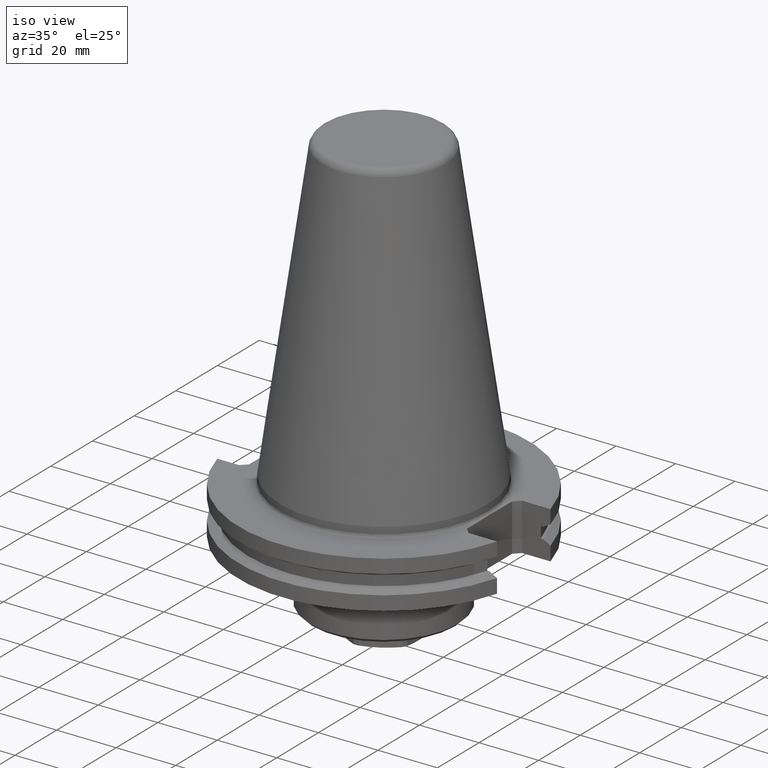
[diagram: clean part render]
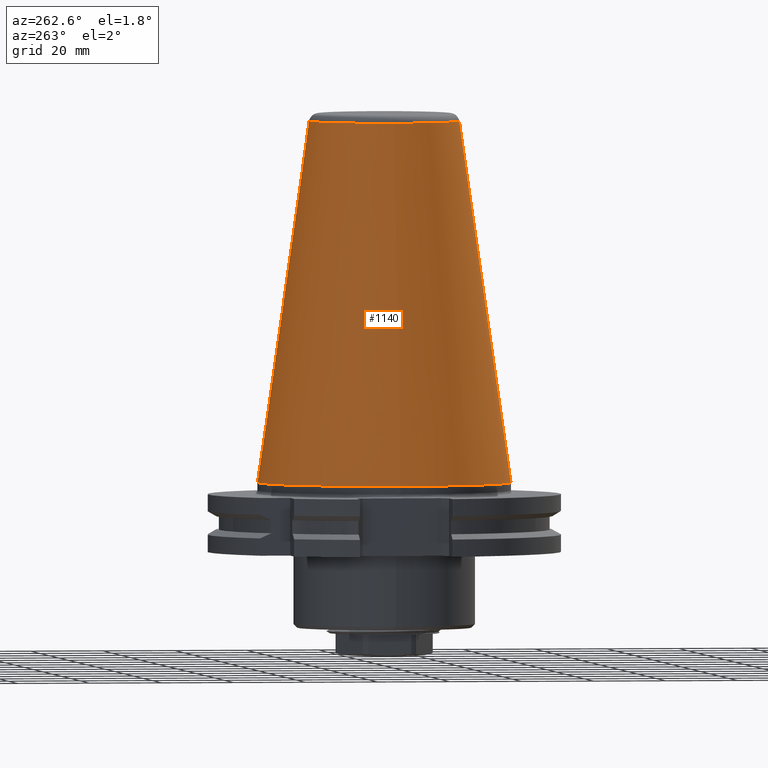
[diagram: tour spotlight — one face highlighted and labeled with its STEP entity id]
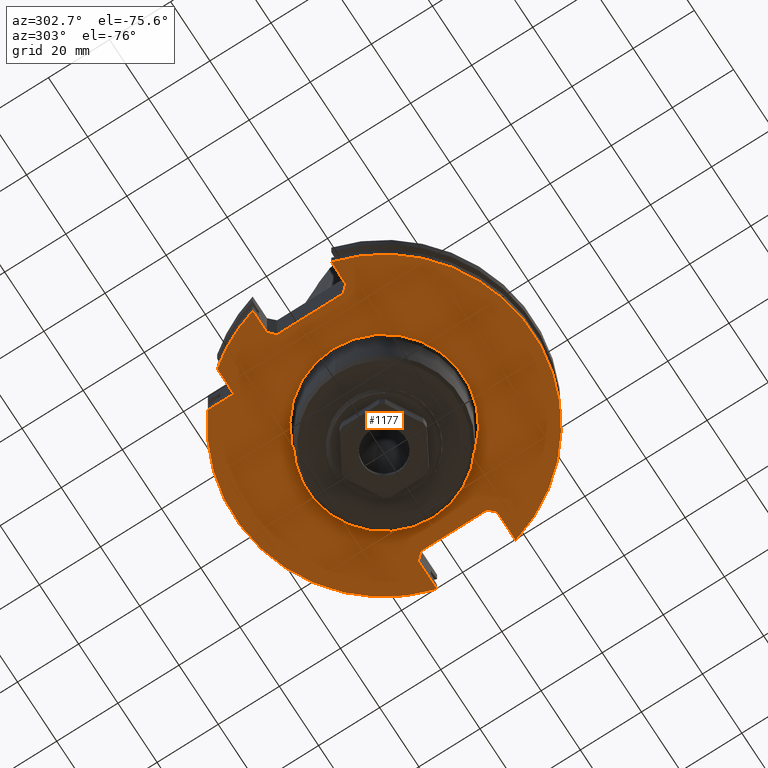
[diagram: tour spotlight — one face highlighted and labeled with its STEP entity id]
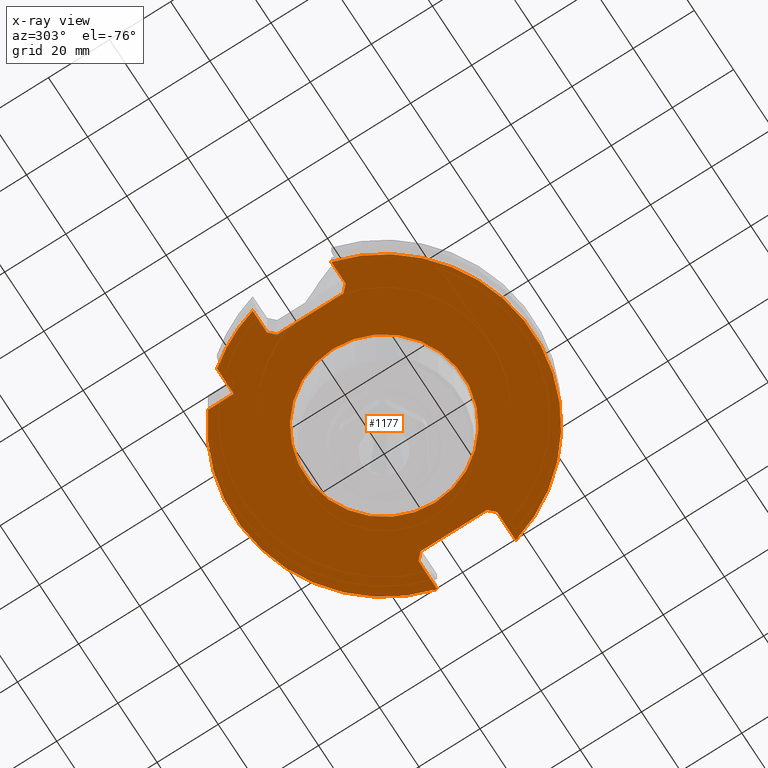
[diagram: x-ray of the same camera — body ghosted, this tour face saturated]
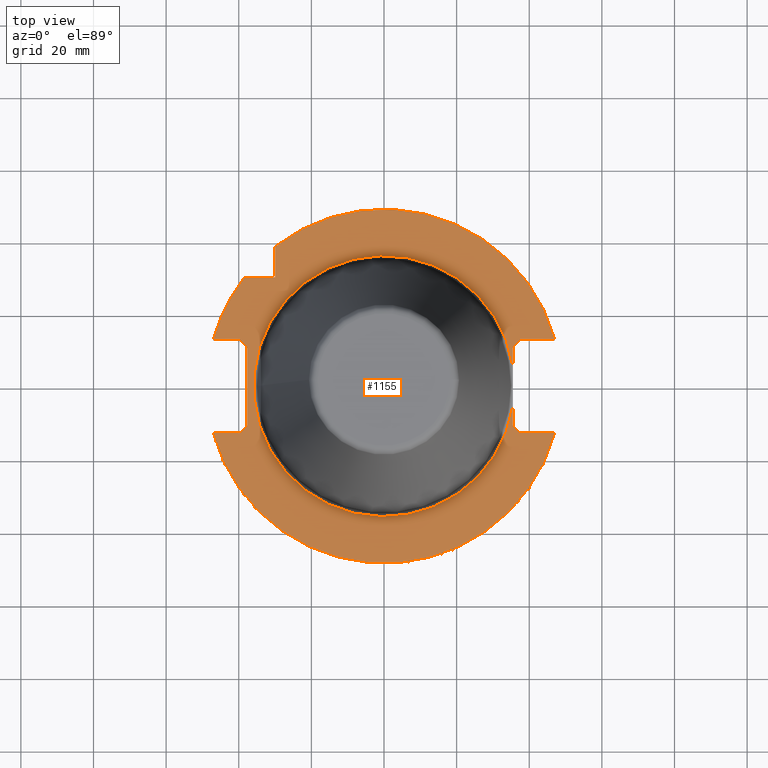
[diagram: tour spotlight — one face highlighted and labeled with its STEP entity id]
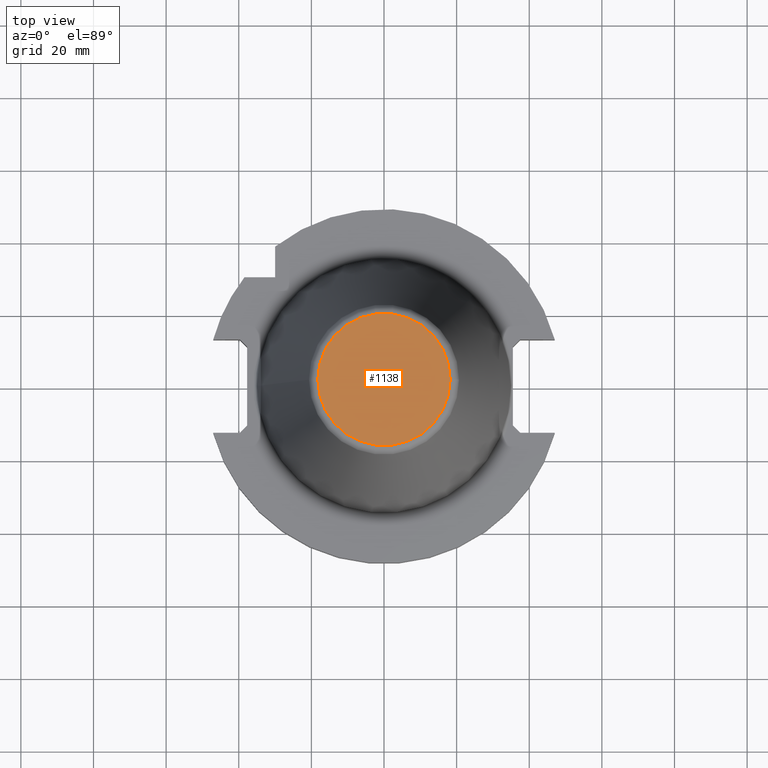
[diagram: tour spotlight — one face highlighted and labeled with its STEP entity id]
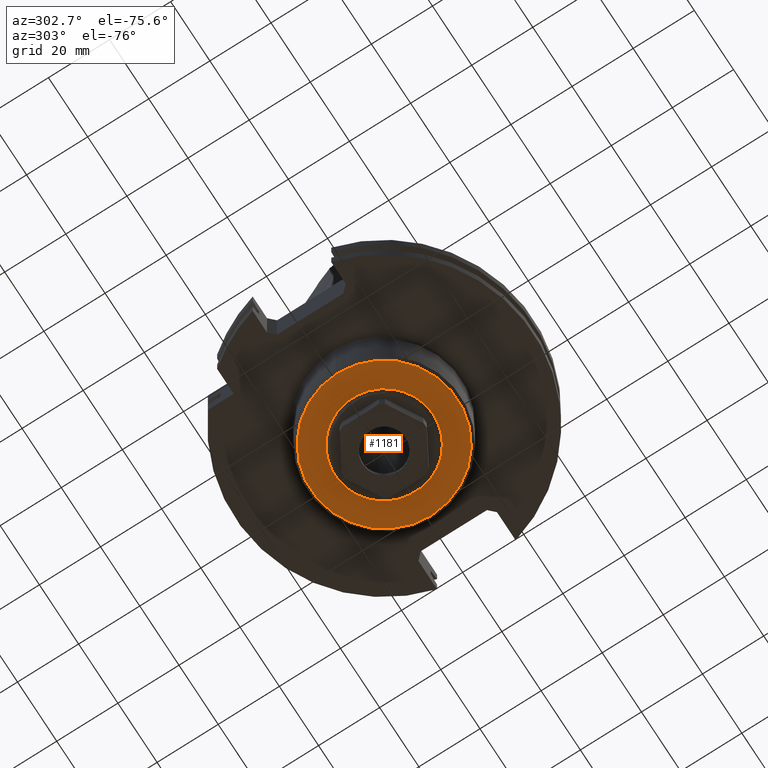
[diagram: tour spotlight — one face highlighted and labeled with its STEP entity id]
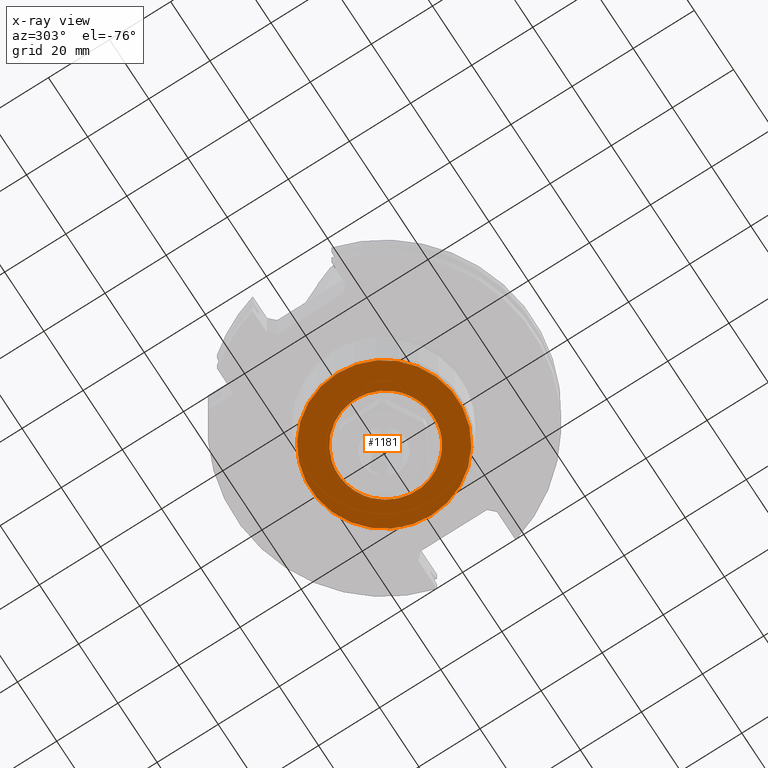
[diagram: x-ray of the same camera — body ghosted, this tour face saturated]
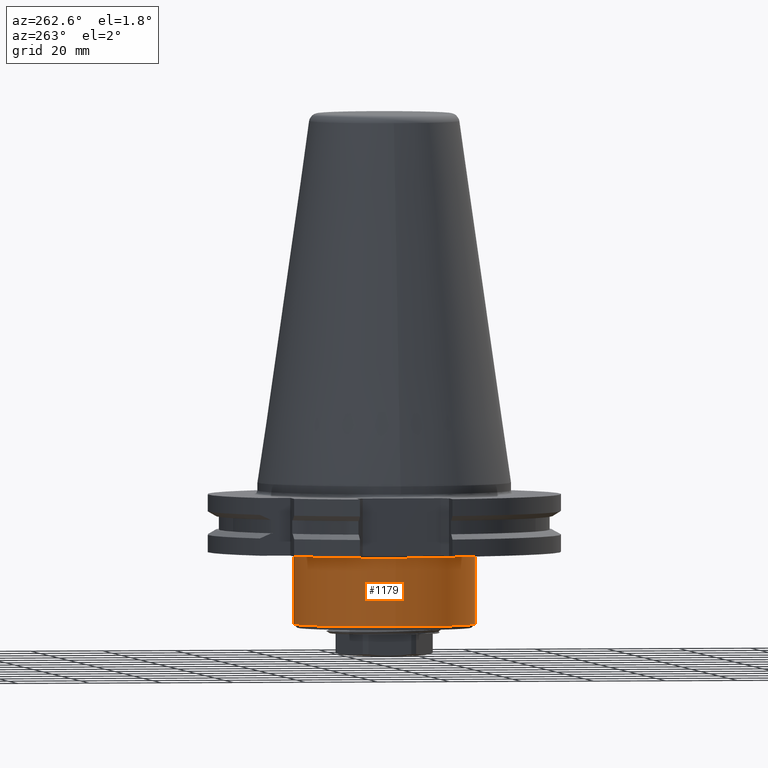
[diagram: tour spotlight — one face highlighted and labeled with its STEP entity id]
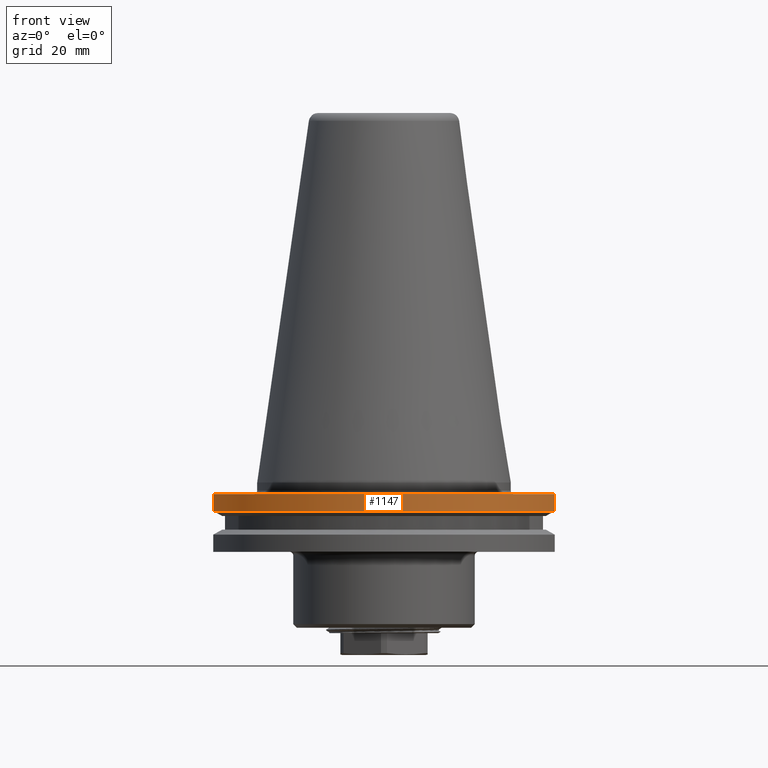
[diagram: tour spotlight — one face highlighted and labeled with its STEP entity id]
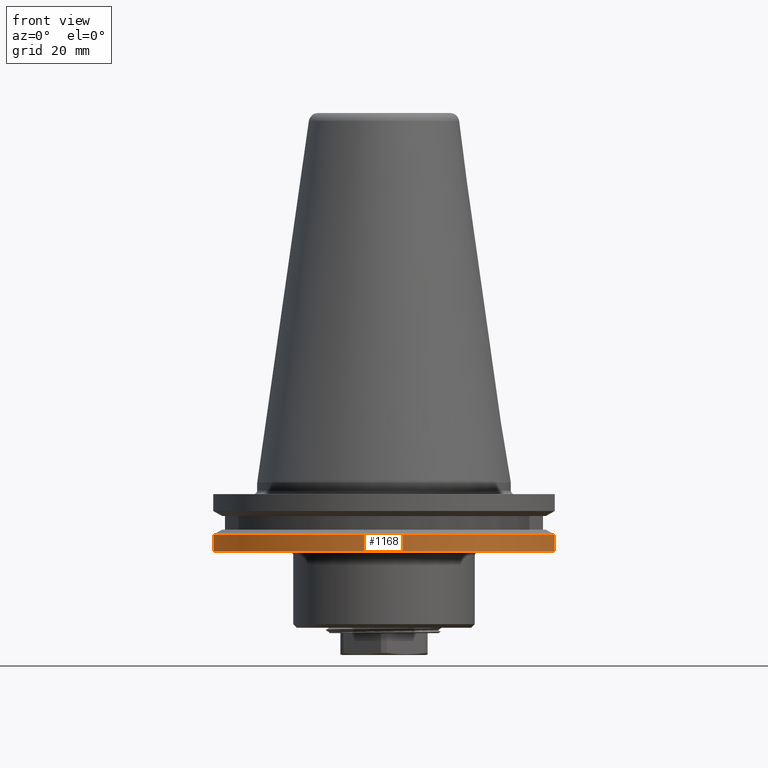
[diagram: tour spotlight — one face highlighted and labeled with its STEP entity id]
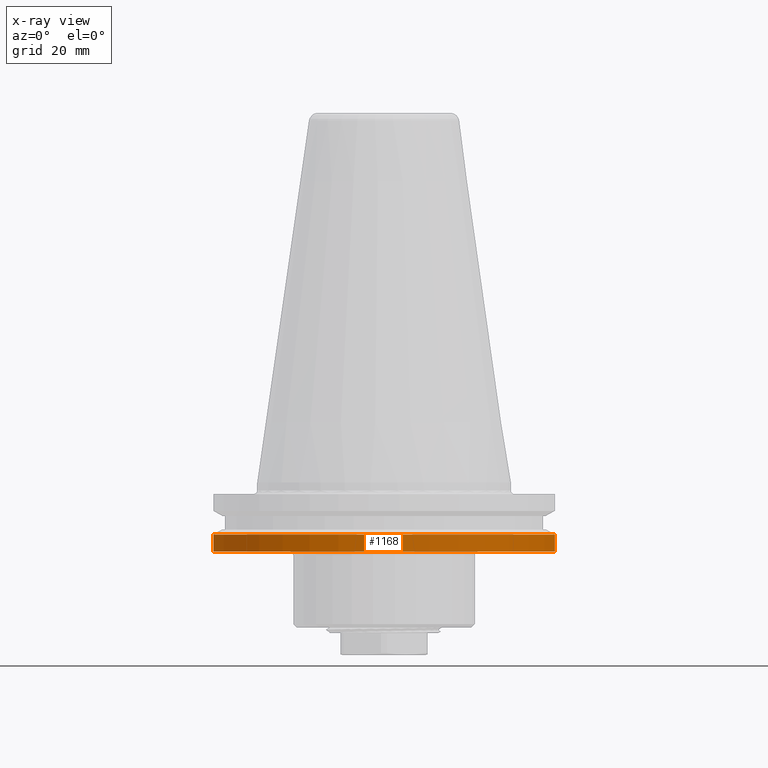
[diagram: x-ray of the same camera — body ghosted, this tour face saturated]
A machine part: a face-by-face anatomy tour. The part has 71 B-rep faces; the first image is the clean iso view, then the 8 largest visible faces are spotlighted one at a time (largest first), each with its STEP entity span.

Face 1 — auxiliary view, entity #1140. In plain terms, the highlighted conical surface has half-angle 8.13 deg.
Definition (entity closure, byte-faithful):
#237=CONICAL_SURFACE('',#1226,34.925,0.141897013516391);
#255=ORIENTED_EDGE('',*,*,#587,.T.);
#256=ORIENTED_EDGE('',*,*,#588,.F.);
#587=EDGE_CURVE('',#754,#754,#871,.F.);
#588=EDGE_CURVE('',#755,#755,#872,.T.);
#754=VERTEX_POINT('',#1684);
#755=VERTEX_POINT('',#1687);
#871=CIRCLE('',#1225,20.695925134736);
#872=CIRCLE('',#1227,34.925);
#929=EDGE_LOOP('',(#255));
#930=EDGE_LOOP('',(#256));
#1019=FACE_BOUND('',#929,.T.);
#1020=FACE_BOUND('',#930,.T.);
#1140=ADVANCED_FACE('',(#1019,#1020),#237,.T.);
#1225=AXIS2_PLACEMENT_3D('',#1683,#1354,#1355);
#1226=AXIS2_PLACEMENT_3D('',#1685,#1356,#1357);
#1227=AXIS2_PLACEMENT_3D('',#1686,#1358,#1359);
#1354=DIRECTION('',(0.,0.,1.));
#1355=DIRECTION('',(1.,0.,0.));
#1356=DIRECTION('',(0.,0.,-1.));
#1357=DIRECTION('',(-1.,0.,0.));
#1358=DIRECTION('',(0.,0.,-1.));
#1359=DIRECTION('',(-1.,0.,0.));
#1683=CARTESIAN_POINT('',(0.,0.,99.6035532889062));
#1684=CARTESIAN_POINT('',(20.695925134736,0.,99.6035532889062));
#1685=CARTESIAN_POINT('',(0.,0.,0.));
#1686=CARTESIAN_POINT('',(0.,0.,0.));
#1687=CARTESIAN_POINT('',(-34.925,0.,0.));

Face 2 — auxiliary view, entity #1177. An x-ray twin of the same camera follows (body ghosted, this face saturated) — the face is partly hidden behind the body. In plain terms, the highlighted planar face has unit normal (0, 0, -1).
Definition (entity closure, byte-faithful):
#67=LINE('',#1885,#149);
#69=LINE('',#1889,#151);
#71=LINE('',#1893,#153);
#73=LINE('',#1897,#155);
#75=LINE('',#1901,#157);
#78=LINE('',#1909,#160);
#80=LINE('',#1913,#162);
#82=LINE('',#1917,#164);
#84=LINE('',#1921,#166);
#86=LINE('',#1925,#168);
#88=LINE('',#1931,#170);
#90=LINE('',#1935,#172);
#149=VECTOR('',#1494,1000.);
#151=VECTOR('',#1498,1000.);
#153=VECTOR('',#1502,1000.);
#155=VECTOR('',#1506,1000.);
#157=VECTOR('',#1510,1000.);
#160=VECTOR('',#1519,1000.);
#162=VECTOR('',#1523,1000.);
#164=VECTOR('',#1527,1000.);
#166=VECTOR('',#1531,1000.);
#168=VECTOR('',#1535,1000.);
#170=VECTOR('',#1543,1000.);
#172=VECTOR('',#1547,1000.);
#449=ORIENTED_EDGE('',*,*,#692,.F.);
#450=ORIENTED_EDGE('',*,*,#691,.F.);
#451=ORIENTED_EDGE('',*,*,#689,.F.);
#452=ORIENTED_EDGE('',*,*,#688,.T.);
#453=ORIENTED_EDGE('',*,*,#686,.T.);
#454=ORIENTED_EDGE('',*,*,#684,.T.);
#455=ORIENTED_EDGE('',*,*,#682,.T.);
#456=ORIENTED_EDGE('',*,*,#680,.T.);
#457=ORIENTED_EDGE('',*,*,#678,.T.);
#458=ORIENTED_EDGE('',*,*,#675,.T.);
#459=ORIENTED_EDGE('',*,*,#674,.T.);
#460=ORIENTED_EDGE('',*,*,#672,.T.);
#461=ORIENTED_EDGE('',*,*,#670,.T.);
#462=ORIENTED_EDGE('',*,*,#668,.T.);
#463=ORIENTED_EDGE('',*,*,#666,.T.);
#464=ORIENTED_EDGE('',*,*,#663,.T.);
#663=EDGE_CURVE('',#811,#810,#896,.T.);
#666=EDGE_CURVE('',#812,#811,#67,.T.);
#668=EDGE_CURVE('',#813,#812,#69,.T.);
#670=EDGE_CURVE('',#814,#813,#71,.T.);
#672=EDGE_CURVE('',#815,#814,#73,.T.);
#674=EDGE_CURVE('',#816,#815,#75,.T.);
#675=EDGE_CURVE('',#817,#816,#897,.T.);
#678=EDGE_CURVE('',#818,#817,#78,.T.);
#680=EDGE_CURVE('',#819,#818,#80,.T.);
#682=EDGE_CURVE('',#820,#819,#82,.T.);
#684=EDGE_CURVE('',#821,#820,#84,.T.);
#686=EDGE_CURVE('',#822,#821,#86,.T.);
#688=EDGE_CURVE('',#823,#822,#898,.T.);
#689=EDGE_CURVE('',#823,#824,#88,.T.);
#691=EDGE_CURVE('',#824,#810,#90,.T.);
#692=EDGE_CURVE('',#825,#825,#899,.T.);
#810=VERTEX_POINT('',#1878);
#811=VERTEX_POINT('',#1880);
#812=VERTEX_POINT('',#1884);
#813=VERTEX_POINT('',#1888);
#814=VERTEX_POINT('',#1892);
#815=VERTEX_POINT('',#1896);
#816=VERTEX_POINT('',#1900);
#817=VERTEX_POINT('',#1904);
#818=VERTEX_POINT('',#1908);
#819=VERTEX_POINT('',#1912);
#820=VERTEX_POINT('',#1916);
#821=VERTEX_POINT('',#1920);
#822=VERTEX_POINT('',#1924);
#823=VERTEX_POINT('',#1928);
#824=VERTEX_POINT('',#1932);
#825=VERTEX_POINT('',#1938);
#896=CIRCLE('',#1273,48.75);
#897=CIRCLE('',#1280,48.75);
#898=CIRCLE('',#1287,48.75);
#899=CIRCLE('',#1291,26.);
#969=EDGE_LOOP('',(#449));
#970=EDGE_LOOP('',(#450,#451,#452,#453,#454,#455,#456,#457,#458,#459,#460,
#461,#462,#463,#464));
#1059=FACE_BOUND('',#969,.T.);
#1060=FACE_BOUND('',#970,.T.);
#1126=PLANE('',#1290);
#1177=ADVANCED_FACE('',(#1059,#1060),#1126,.T.);
#1273=AXIS2_PLACEMENT_3D('',#1879,#1488,#1489);
#1280=AXIS2_PLACEMENT_3D('',#1903,#1513,#1514);
#1287=AXIS2_PLACEMENT_3D('',#1929,#1539,#1540);
#1290=AXIS2_PLACEMENT_3D('',#1936,#1548,#1549);
#1291=AXIS2_PLACEMENT_3D('',#1937,#1550,#1551);
#1488=DIRECTION('',(0.,0.,-1.));
#1489=DIRECTION('',(-1.,0.,0.));
#1494=DIRECTION('',(-1.,1.75217359979085E-16,0.));
#1498=DIRECTION('',(-0.707106781186549,0.707106781186546,0.));
#1502=DIRECTION('',(0.,1.,0.));
#1506=DIRECTION('',(0.707106781186549,0.707106781186546,0.));
#1510=DIRECTION('',(1.,1.75217359979085E-16,0.));
#1513=DIRECTION('',(0.,0.,-1.));
#1514=DIRECTION('',(-1.,0.,0.));
#1519=DIRECTION('',(1.,-1.75217359979085E-16,0.));
#1523=DIRECTION('',(0.707106781186556,-0.707106781186539,0.));
#1527=DIRECTION('',(0.,-1.,0.));
#1531=DIRECTION('',(-0.707106781186556,-0.707106781186539,0.));
#1535=DIRECTION('',(-1.,-1.75217359979085E-16,0.));
#1539=DIRECTION('',(0.,0.,-1.));
#1540=DIRECTION('',(-1.,0.,0.));
#1543=DIRECTION('',(-1.59948402644759E-16,-1.,0.));
#1547=DIRECTION('',(-1.,0.,0.));
#1548=DIRECTION('',(0.,0.,-1.));
#1549=DIRECTION('',(-1.,0.,0.));
#1550=DIRECTION('',(0.,0.,-1.));
#1551=DIRECTION('',(-1.,0.,0.));
#1878=CARTESIAN_POINT('',(-38.4260653723485,30.,-19.1));
#1879=CARTESIAN_POINT('',(0.,0.,-19.1));
#1880=CARTESIAN_POINT('',(-47.025950282796,12.85,-19.1));
#1884=CARTESIAN_POINT('',(-39.7,12.85,-19.1));
#1885=CARTESIAN_POINT('',(-48.75,12.85,-19.1));
#1888=CARTESIAN_POINT('',(-37.7,10.85,-19.1));
#1889=CARTESIAN_POINT('',(-37.8,10.95,-19.1));
#1892=CARTESIAN_POINT('',(-37.7,-10.85,-19.1));
#1893=CARTESIAN_POINT('',(-37.7,0.,-19.1));
#1896=CARTESIAN_POINT('',(-39.7,-12.85,-19.1));
#1897=CARTESIAN_POINT('',(-37.8,-10.95,-19.1));
#1900=CARTESIAN_POINT('',(-47.025950282796,-12.85,-19.1));
#1901=CARTESIAN_POINT('',(-48.75,-12.85,-19.1));
#1903=CARTESIAN_POINT('',(0.,0.,-19.1));
#1904=CARTESIAN_POINT('',(47.025950282796,-12.85,-19.1));
#1908=CARTESIAN_POINT('',(37.5000000000001,-12.85,-19.1));
#1909=CARTESIAN_POINT('',(-48.75,-12.85,-19.1));
#1912=CARTESIAN_POINT('',(35.5,-10.85,-19.1));
#1913=CARTESIAN_POINT('',(-12.050000000001,36.6999999999999,-19.1));
#1916=CARTESIAN_POINT('',(35.5,10.85,-19.1));
#1917=CARTESIAN_POINT('',(35.5,0.,-19.1));
#1920=CARTESIAN_POINT('',(37.5000000000001,12.85,-19.1));
#1921=CARTESIAN_POINT('',(-12.050000000001,-36.6999999999999,-19.1));
#1924=CARTESIAN_POINT('',(47.025950282796,12.85,-19.1));
#1925=CARTESIAN_POINT('',(-48.75,12.85,-19.1));
#1928=CARTESIAN_POINT('',(-30.,38.4260653723485,-19.1));
#1929=CARTESIAN_POINT('',(0.,0.,-19.1));
#1931=CARTESIAN_POINT('',(-30.,-2.99903254958923E-15,-19.1));
#1932=CARTESIAN_POINT('',(-30.,30.,-19.1));
#1935=CARTESIAN_POINT('',(-48.75,30.,-19.1));
#1936=CARTESIAN_POINT('',(-48.75,0.,-19.1));
#1937=CARTESIAN_POINT('',(0.,0.,-19.1));
#1938=CARTESIAN_POINT('',(-26.,0.,-19.1));

Face 3 — top view, entity #1155. In plain terms, the highlighted planar face has unit normal (0, 0, 1).
Definition (entity closure, byte-faithful):
#43=LINE('',#1803,#125);
#44=LINE('',#1808,#126);
#45=LINE('',#1810,#127);
#46=LINE('',#1812,#128);
#47=LINE('',#1814,#129);
#48=LINE('',#1816,#130);
#49=LINE('',#1817,#131);
#50=LINE('',#1819,#132);
#51=LINE('',#1821,#133);
#52=LINE('',#1822,#134);
#53=LINE('',#1824,#135);
#54=LINE('',#1826,#136);
#55=LINE('',#1827,#137);
#125=VECTOR('',#1438,1000.);
#126=VECTOR('',#1441,1000.);
#127=VECTOR('',#1442,1000.);
#128=VECTOR('',#1443,1000.);
#129=VECTOR('',#1444,1000.);
#130=VECTOR('',#1445,1000.);
#131=VECTOR('',#1446,1000.);
#132=VECTOR('',#1447,1000.);
#133=VECTOR('',#1448,1000.);
#134=VECTOR('',#1449,1000.);
#135=VECTOR('',#1450,1000.);
#136=VECTOR('',#1451,1000.);
#137=VECTOR('',#1452,1000.);
#310=ORIENTED_EDGE('',*,*,#630,.F.);
#311=ORIENTED_EDGE('',*,*,#631,.F.);
#312=ORIENTED_EDGE('',*,*,#632,.T.);
#313=ORIENTED_EDGE('',*,*,#633,.T.);
#314=ORIENTED_EDGE('',*,*,#634,.T.);
#315=ORIENTED_EDGE('',*,*,#635,.T.);
#316=ORIENTED_EDGE('',*,*,#636,.T.);
#317=ORIENTED_EDGE('',*,*,#607,.F.);
#318=ORIENTED_EDGE('',*,*,#637,.T.);
#319=ORIENTED_EDGE('',*,*,#638,.T.);
#320=ORIENTED_EDGE('',*,*,#639,.T.);
#321=ORIENTED_EDGE('',*,*,#610,.T.);
#322=ORIENTED_EDGE('',*,*,#640,.T.);
#323=ORIENTED_EDGE('',*,*,#641,.T.);
#324=ORIENTED_EDGE('',*,*,#642,.T.);
#325=ORIENTED_EDGE('',*,*,#628,.F.);
#326=ORIENTED_EDGE('',*,*,#643,.F.);
#607=EDGE_CURVE('',#769,#770,#880,.T.);
#610=EDGE_CURVE('',#772,#771,#881,.F.);
#628=EDGE_CURVE('',#785,#786,#888,.T.);
#630=EDGE_CURVE('',#787,#788,#43,.T.);
#631=EDGE_CURVE('',#789,#787,#889,.T.);
#632=EDGE_CURVE('',#789,#790,#44,.T.);
#633=EDGE_CURVE('',#790,#791,#45,.T.);
#634=EDGE_CURVE('',#791,#792,#46,.T.);
#635=EDGE_CURVE('',#792,#793,#47,.T.);
#636=EDGE_CURVE('',#793,#770,#48,.T.);
#637=EDGE_CURVE('',#769,#794,#49,.T.);
#638=EDGE_CURVE('',#794,#795,#50,.T.);
#639=EDGE_CURVE('',#795,#772,#51,.T.);
#640=EDGE_CURVE('',#771,#796,#52,.T.);
#641=EDGE_CURVE('',#796,#797,#53,.T.);
#642=EDGE_CURVE('',#797,#786,#54,.T.);
#643=EDGE_CURVE('',#788,#785,#55,.T.);
#769=VERTEX_POINT('',#1738);
#770=VERTEX_POINT('',#1740);
#771=VERTEX_POINT('',#1748);
#772=VERTEX_POINT('',#1749);
#785=VERTEX_POINT('',#1798);
#786=VERTEX_POINT('',#1800);
#787=VERTEX_POINT('',#1804);
#788=VERTEX_POINT('',#1805);
#789=VERTEX_POINT('',#1807);
#790=VERTEX_POINT('',#1809);
#791=VERTEX_POINT('',#1811);
#792=VERTEX_POINT('',#1813);
#793=VERTEX_POINT('',#1815);
#794=VERTEX_POINT('',#1818);
#795=VERTEX_POINT('',#1820);
#796=VERTEX_POINT('',#1823);
#797=VERTEX_POINT('',#1825);
#880=CIRCLE('',#1242,48.75);
#881=CIRCLE('',#1244,35.925);
#888=CIRCLE('',#1257,48.75);
#889=CIRCLE('',#1259,48.75);
#947=EDGE_LOOP('',(#310,#311,#312,#313,#314,#315,#316,#317,#318,#319,#320,
#321,#322,#323,#324,#325,#326));
#1037=FACE_BOUND('',#947,.T.);
#1111=PLANE('',#1258);
#1155=ADVANCED_FACE('',(#1037),#1111,.T.);
#1242=AXIS2_PLACEMENT_3D('',#1739,#1395,#1396);
#1244=AXIS2_PLACEMENT_3D('',#1750,#1400,#1401);
#1257=AXIS2_PLACEMENT_3D('',#1799,#1433,#1434);
#1258=AXIS2_PLACEMENT_3D('',#1802,#1436,#1437);
#1259=AXIS2_PLACEMENT_3D('',#1806,#1439,#1440);
#1395=DIRECTION('',(0.,0.,-1.));
#1396=DIRECTION('',(-1.,0.,0.));
#1400=DIRECTION('',(0.,0.,1.));
#1401=DIRECTION('',(1.,0.,0.));
#1433=DIRECTION('',(0.,0.,-1.));
#1434=DIRECTION('',(-1.,0.,0.));
#1436=DIRECTION('',(0.,0.,1.));
#1437=DIRECTION('',(1.,0.,0.));
#1438=DIRECTION('',(1.,0.,0.));
#1439=DIRECTION('',(0.,0.,-1.));
#1440=DIRECTION('',(-1.,0.,0.));
#1441=DIRECTION('',(1.,-1.75217359979085E-16,0.));
#1442=DIRECTION('',(0.707106781186549,-0.707106781186546,0.));
#1443=DIRECTION('',(0.,-1.,0.));
#1444=DIRECTION('',(-0.707106781186549,-0.707106781186546,0.));
#1445=DIRECTION('',(-1.,-1.75217359979085E-16,0.));
#1446=DIRECTION('',(-1.,1.75217359979085E-16,0.));
#1447=DIRECTION('',(-0.707106781186556,0.707106781186539,0.));
#1448=DIRECTION('',(0.,1.,0.));
#1449=DIRECTION('',(0.,1.,0.));
#1450=DIRECTION('',(0.707106781186556,0.707106781186539,0.));
#1451=DIRECTION('',(1.,1.75217359979085E-16,0.));
#1452=DIRECTION('',(1.59948402644759E-16,1.,0.));
#1738=CARTESIAN_POINT('',(47.025950282796,-12.85,-3.2));
#1739=CARTESIAN_POINT('',(0.,0.,-3.2));
#1740=CARTESIAN_POINT('',(-47.025950282796,-12.85,-3.2));
#1748=CARTESIAN_POINT('',(35.5,5.50959390518013,-3.2));
#1749=CARTESIAN_POINT('',(35.5,-5.50959390518013,-3.2));
#1750=CARTESIAN_POINT('',(0.,0.,-3.2));
#1798=CARTESIAN_POINT('',(-30.,38.4260653723485,-3.2));
#1799=CARTESIAN_POINT('',(0.,0.,-3.2));
#1800=CARTESIAN_POINT('',(47.025950282796,12.85,-3.2));
#1802=CARTESIAN_POINT('',(-34.925,0.,-3.2));
#1803=CARTESIAN_POINT('',(-34.925,30.,-3.2));
#1804=CARTESIAN_POINT('',(-38.4260653723485,30.,-3.2));
#1805=CARTESIAN_POINT('',(-30.,30.,-3.20000000000001));
#1806=CARTESIAN_POINT('',(0.,0.,-3.2));
#1807=CARTESIAN_POINT('',(-47.025950282796,12.85,-3.2));
#1808=CARTESIAN_POINT('',(-34.925,12.85,-3.2));
#1809=CARTESIAN_POINT('',(-39.7,12.85,-3.20000000000006));
#1810=CARTESIAN_POINT('',(-30.8875,4.03750000000002,-3.2));
#1811=CARTESIAN_POINT('',(-37.7,10.85,-3.20000000000006));
#1812=CARTESIAN_POINT('',(-37.7,0.,-3.2));
#1813=CARTESIAN_POINT('',(-37.7,-10.85,-3.20000000000006));
#1814=CARTESIAN_POINT('',(-30.8875,-4.03750000000002,-3.2));
#1815=CARTESIAN_POINT('',(-39.7,-12.85,-3.20000000000006));
#1816=CARTESIAN_POINT('',(-34.925,-12.85,-3.2));
#1817=CARTESIAN_POINT('',(-34.925,-12.85,-3.2));
#1818=CARTESIAN_POINT('',(37.5000000000001,-12.85,-3.20000000000001));
#1819=CARTESIAN_POINT('',(-5.13750000000083,29.7874999999999,-3.2));
#1820=CARTESIAN_POINT('',(35.5,-10.85,-3.20000000000001));
#1821=CARTESIAN_POINT('',(35.5,0.,-3.2));
#1822=CARTESIAN_POINT('',(35.5,0.,-3.2));
#1823=CARTESIAN_POINT('',(35.5,10.85,-3.20000000000001));
#1824=CARTESIAN_POINT('',(-5.13750000000083,-29.7874999999999,-3.2));
#1825=CARTESIAN_POINT('',(37.5000000000001,12.85,-3.20000000000001));
#1826=CARTESIAN_POINT('',(-34.925,12.85,-3.2));
#1827=CARTESIAN_POINT('',(-30.,-7.87745883025436E-16,-3.2));

Face 4 — top view, entity #1138. In plain terms, the highlighted planar face has unit normal (0, 0, 1).
Definition (entity closure, byte-faithful):
#252=ORIENTED_EDGE('',*,*,#586,.T.);
#586=EDGE_CURVE('',#753,#753,#870,.T.);
#753=VERTEX_POINT('',#1681);
#870=CIRCLE('',#1223,18.2210513860564);
#926=EDGE_LOOP('',(#252));
#1016=FACE_BOUND('',#926,.T.);
#1106=PLANE('',#1222);
#1138=ADVANCED_FACE('',(#1016),#1106,.T.);
#1222=AXIS2_PLACEMENT_3D('',#1679,#1348,#1349);
#1223=AXIS2_PLACEMENT_3D('',#1680,#1350,#1351);
#1348=DIRECTION('',(0.,0.,1.));
#1349=DIRECTION('',(1.,0.,0.));
#1350=DIRECTION('',(0.,0.,1.));
#1351=DIRECTION('',(1.,0.,0.));
#1679=CARTESIAN_POINT('',(-20.3892899802866,0.,101.75));
#1680=CARTESIAN_POINT('',(0.,0.,101.75));
#1681=CARTESIAN_POINT('',(18.2210513860564,0.,101.75));

Face 5 — auxiliary view, entity #1181. An x-ray twin of the same camera follows (body ghosted, this face saturated) — the face is partly hidden behind the body. In plain terms, the highlighted planar face has unit normal (0, 0, -1).
Definition (entity closure, byte-faithful):
#204=B_SPLINE_CURVE_WITH_KNOTS('',3,(#1949,#1950,#1951,#1952,#1953,#1954,
#1955),.UNSPECIFIED.,.F.,.F.,(4,1,1,1,4),(0.,0.00596529124478635,0.0119305824895727,
0.0178958737343591,0.0238611649791454),.UNSPECIFIED.);
#205=B_SPLINE_CURVE_WITH_KNOTS('',3,(#1958,#1959,#1960,#1961,#1962,#1963,
#1964,#1965,#1966,#1967),.UNSPECIFIED.,.F.,.F.,(4,1,1,1,1,1,1,4),(0.,0.00768546700505983,
0.0115282005075897,0.0153709340101197,0.0192136675126496,0.0230564010151795,
0.0268991345177094,0.0307418680202393),.UNSPECIFIED.);
#206=B_SPLINE_CURVE_WITH_KNOTS('',3,(#1971,#1972,#1973,#1974,#1975,#1976,
#1977,#1978,#1979),.UNSPECIFIED.,.F.,.F.,(4,1,1,1,1,1,4),(4.91801180429166E-16,
0.0038402687868062,0.00768053757361191,0.0153610751472233,0.0230416127208348,
0.0268818815076405,0.0307221502944462),.UNSPECIFIED.);
#471=ORIENTED_EDGE('',*,*,#696,.T.);
#472=ORIENTED_EDGE('',*,*,#697,.T.);
#473=ORIENTED_EDGE('',*,*,#698,.T.);
#474=ORIENTED_EDGE('',*,*,#699,.T.);
#475=ORIENTED_EDGE('',*,*,#695,.T.);
#695=EDGE_CURVE('',#828,#828,#902,.T.);
#696=EDGE_CURVE('',#829,#830,#204,.T.);
#697=EDGE_CURVE('',#830,#831,#205,.T.);
#698=EDGE_CURVE('',#831,#832,#903,.F.);
#699=EDGE_CURVE('',#832,#829,#206,.T.);
#828=VERTEX_POINT('',#1947);
#829=VERTEX_POINT('',#1956);
#830=VERTEX_POINT('',#1957);
#831=VERTEX_POINT('',#1968);
#832=VERTEX_POINT('',#1970);
#902=CIRCLE('',#1297,24.);
#903=CIRCLE('',#1299,16.);
#977=EDGE_LOOP('',(#471,#472,#473,#474));
#978=EDGE_LOOP('',(#475));
#1067=FACE_BOUND('',#977,.T.);
#1068=FACE_BOUND('',#978,.T.);
#1127=PLANE('',#1298);
#1181=ADVANCED_FACE('',(#1067,#1068),#1127,.T.);
#1297=AXIS2_PLACEMENT_3D('',#1946,#1562,#1563);
#1298=AXIS2_PLACEMENT_3D('',#1948,#1564,#1565);
#1299=AXIS2_PLACEMENT_3D('',#1969,#1566,#1567);
#1562=DIRECTION('',(0.,0.,-1.));
#1563=DIRECTION('',(-1.,0.,0.));
#1564=DIRECTION('',(0.,0.,-1.));
#1565=DIRECTION('',(-1.,0.,0.));
#1566=DIRECTION('',(0.,0.,-1.));
#1567=DIRECTION('',(-1.,0.,0.));
#1946=CARTESIAN_POINT('',(0.,0.,-40.));
#1947=CARTESIAN_POINT('',(-24.,0.,-40.));
#1948=CARTESIAN_POINT('',(0.,0.,-40.));
#1949=CARTESIAN_POINT('',(-3.88154234668007,14.6856981111192,-40.));
#1950=CARTESIAN_POINT('',(-5.78941320323868,14.1248701943787,-40.));
#1951=CARTESIAN_POINT('',(-9.40282735424136,12.3094293883564,-40.0000000000004));
#1952=CARTESIAN_POINT('',(-13.3989715067774,7.73506472531057,-39.9999999999986));
#1953=CARTESIAN_POINT('',(-15.3619230414019,1.98570780483644,-40.0000000000051));
#1954=CARTESIAN_POINT('',(-15.127168608014,-2.04879820549502,-39.9999999999891));
#1955=CARTESIAN_POINT('',(-14.6589588098702,-3.98133477746372,-39.9999999999891));
#1956=CARTESIAN_POINT('',(-3.88154234668007,14.6856981111192,-40.));
#1957=CARTESIAN_POINT('',(-14.6589588098797,-3.9813347774647,-40.));
#1958=CARTESIAN_POINT('',(-14.6589588098797,-3.9813347774647,-40.));
#1959=CARTESIAN_POINT('',(-14.0542747295794,-6.47716913274061,-40.));
#1960=CARTESIAN_POINT('',(-12.1676987425462,-9.95144109079792,-40.));
#1961=CARTESIAN_POINT('',(-8.29878487801849,-13.2723397200442,-40.));
#1962=CARTESIAN_POINT('',(-4.81415948339074,-15.0054636845504,-40.));
#1963=CARTESIAN_POINT('',(-1.09256536365831,-15.8193666530057,-40.));
#1964=CARTESIAN_POINT('',(2.80123110505608,-15.7012563666245,-40.));
#1965=CARTESIAN_POINT('',(6.47643778335244,-14.6824940823056,-40.));
#1966=CARTESIAN_POINT('',(8.7309735938255,-13.4281896280836,-40.));
#1967=CARTESIAN_POINT('',(9.76821538777372,-12.6720940707549,-40.));
#1968=CARTESIAN_POINT('',(9.76821538777415,-12.6720940707545,-40.));
#1969=CARTESIAN_POINT('',(1.61094390544323E-15,1.1981113251988E-15,-40.));
#1970=CARTESIAN_POINT('',(15.8584630783061,-2.12347564007745,-40.));
#1971=CARTESIAN_POINT('',(15.858463078306,-2.12347564007794,-40.));
#1972=CARTESIAN_POINT('',(15.9945655119172,-0.847849588608964,-40.));
#1973=CARTESIAN_POINT('',(15.954957588825,1.73453918004812,-40.));
#1974=CARTESIAN_POINT('',(14.6679601707524,6.68659280774222,-40.));
#1975=CARTESIAN_POINT('',(10.8890727511212,12.0590684613873,-40.));
#1976=CARTESIAN_POINT('',(5.00042225652199,14.9759705754017,-40.));
#1977=CARTESIAN_POINT('',(-0.0986626016400454,15.4501933779402,-40.));
#1978=CARTESIAN_POINT('',(-2.65060773883592,15.0475373254391,-40.));
#1979=CARTESIAN_POINT('',(-3.88154234668007,14.6856981111192,-40.));

Face 6 — auxiliary view, entity #1179. In plain terms, the highlighted cylindrical surface (bore or boss wall) has radius 25 mm, axis along (0, 0, -1).
Definition (entity closure, byte-faithful):
#226=CYLINDRICAL_SURFACE('',#1294,25.);
#467=ORIENTED_EDGE('',*,*,#693,.T.);
#468=ORIENTED_EDGE('',*,*,#694,.F.);
#693=EDGE_CURVE('',#826,#826,#900,.T.);
#694=EDGE_CURVE('',#827,#827,#901,.T.);
#826=VERTEX_POINT('',#1941);
#827=VERTEX_POINT('',#1944);
#900=CIRCLE('',#1293,25.);
#901=CIRCLE('',#1295,25.);
#973=EDGE_LOOP('',(#467));
#974=EDGE_LOOP('',(#468));
#1063=FACE_BOUND('',#973,.T.);
#1064=FACE_BOUND('',#974,.T.);
#1179=ADVANCED_FACE('',(#1063,#1064),#226,.T.);
#1293=AXIS2_PLACEMENT_3D('',#1940,#1554,#1555);
#1294=AXIS2_PLACEMENT_3D('',#1942,#1556,#1557);
#1295=AXIS2_PLACEMENT_3D('',#1943,#1558,#1559);
#1554=DIRECTION('',(0.,0.,-1.));
#1555=DIRECTION('',(-1.,0.,0.));
#1556=DIRECTION('',(0.,0.,-1.));
#1557=DIRECTION('',(-1.,0.,0.));
#1558=DIRECTION('',(0.,0.,-1.));
#1559=DIRECTION('',(-1.,0.,0.));
#1940=CARTESIAN_POINT('',(0.,0.,-20.1));
#1941=CARTESIAN_POINT('',(-25.,0.,-20.1));
#1942=CARTESIAN_POINT('',(0.,0.,57.));
#1943=CARTESIAN_POINT('',(0.,0.,-39.));
#1944=CARTESIAN_POINT('',(-25.,0.,-39.));

Face 7 — front view, entity #1147. In plain terms, the highlighted cylindrical surface (partial cylindrical patch) has radius 48.75 mm, axis along (0, 0, -1).
Definition (entity closure, byte-faithful):
#33=LINE('',#1737,#115);
#34=LINE('',#1741,#116);
#115=VECTOR('',#1394,1000.);
#116=VECTOR('',#1397,1000.);
#218=CYLINDRICAL_SURFACE('',#1241,48.75);
#279=ORIENTED_EDGE('',*,*,#604,.F.);
#280=ORIENTED_EDGE('',*,*,#606,.T.);
#281=ORIENTED_EDGE('',*,*,#607,.T.);
#282=ORIENTED_EDGE('',*,*,#608,.T.);
#604=EDGE_CURVE('',#767,#768,#879,.T.);
#606=EDGE_CURVE('',#767,#769,#33,.F.);
#607=EDGE_CURVE('',#769,#770,#880,.T.);
#608=EDGE_CURVE('',#770,#768,#34,.T.);
#767=VERTEX_POINT('',#1729);
#768=VERTEX_POINT('',#1731);
#769=VERTEX_POINT('',#1738);
#770=VERTEX_POINT('',#1740);
#879=CIRCLE('',#1240,48.75);
#880=CIRCLE('',#1242,48.75);
#938=EDGE_LOOP('',(#279,#280,#281,#282));
#1028=FACE_BOUND('',#938,.T.);
#1147=ADVANCED_FACE('',(#1028),#218,.T.);
#1240=AXIS2_PLACEMENT_3D('',#1730,#1390,#1391);
#1241=AXIS2_PLACEMENT_3D('',#1736,#1392,#1393);
#1242=AXIS2_PLACEMENT_3D('',#1739,#1395,#1396);
#1390=DIRECTION('',(0.,0.,-1.));
#1391=DIRECTION('',(-1.,0.,0.));
#1392=DIRECTION('',(0.,0.,-1.));
#1393=DIRECTION('',(-1.,0.,0.));
#1394=DIRECTION('',(0.,0.,-1.));
#1395=DIRECTION('',(0.,0.,-1.));
#1396=DIRECTION('',(-1.,0.,0.));
#1397=DIRECTION('',(0.,0.,-1.));
#1729=CARTESIAN_POINT('',(47.025950282796,-12.85,-7.85240473580835));
#1730=CARTESIAN_POINT('',(0.,0.,-7.85240473580835));
#1731=CARTESIAN_POINT('',(-47.025950282796,-12.85,-7.85240473580835));
#1736=CARTESIAN_POINT('',(0.,0.,-60.));
#1737=CARTESIAN_POINT('',(47.025950282796,-12.85,-60.));
#1738=CARTESIAN_POINT('',(47.025950282796,-12.85,-3.2));
#1739=CARTESIAN_POINT('',(0.,0.,-3.2));
#1740=CARTESIAN_POINT('',(-47.025950282796,-12.85,-3.2));
#1741=CARTESIAN_POINT('',(-47.025950282796,-12.85,-60.));

Face 8 — front view, entity #1168. An x-ray twin of the same camera follows (body ghosted, this face saturated) — the face is partly hidden behind the body. In plain terms, the highlighted cylindrical surface (partial cylindrical patch) has radius 48.75 mm, axis along (0, 0, -1).
Definition (entity closure, byte-faithful):
#74=LINE('',#1899,#156);
#76=LINE('',#1905,#158);
#156=VECTOR('',#1509,1000.);
#158=VECTOR('',#1515,1000.);
#224=CYLINDRICAL_SURFACE('',#1279,48.75);
#387=ORIENTED_EDGE('',*,*,#675,.F.);
#388=ORIENTED_EDGE('',*,*,#676,.T.);
#389=ORIENTED_EDGE('',*,*,#590,.T.);
#390=ORIENTED_EDGE('',*,*,#673,.T.);
#590=EDGE_CURVE('',#757,#758,#874,.T.);
#673=EDGE_CURVE('',#758,#816,#74,.T.);
#675=EDGE_CURVE('',#817,#816,#897,.T.);
#676=EDGE_CURVE('',#817,#757,#76,.F.);
#757=VERTEX_POINT('',#1693);
#758=VERTEX_POINT('',#1694);
#816=VERTEX_POINT('',#1900);
#817=VERTEX_POINT('',#1904);
#874=CIRCLE('',#1231,48.75);
#897=CIRCLE('',#1280,48.75);
#960=EDGE_LOOP('',(#387,#388,#389,#390));
#1050=FACE_BOUND('',#960,.T.);
#1168=ADVANCED_FACE('',(#1050),#224,.T.);
#1231=AXIS2_PLACEMENT_3D('',#1692,#1366,#1367);
#1279=AXIS2_PLACEMENT_3D('',#1902,#1511,#1512);
#1280=AXIS2_PLACEMENT_3D('',#1903,#1513,#1514);
#1366=DIRECTION('',(0.,0.,-1.));
#1367=DIRECTION('',(-1.,0.,0.));
#1509=DIRECTION('',(0.,0.,-1.));
#1511=DIRECTION('',(0.,0.,-1.));
#1512=DIRECTION('',(-1.,0.,0.));
#1513=DIRECTION('',(0.,0.,-1.));
#1514=DIRECTION('',(-1.,0.,0.));
#1515=DIRECTION('',(0.,0.,-1.));
#1692=CARTESIAN_POINT('',(0.,0.,-14.3475952641916));
#1693=CARTESIAN_POINT('',(47.025950282796,-12.85,-14.3475952641916));
#1694=CARTESIAN_POINT('',(-47.025950282796,-12.85,-14.3475952641916));
#1899=CARTESIAN_POINT('',(-47.025950282796,-12.85,-60.));
#1900=CARTESIAN_POINT('',(-47.025950282796,-12.85,-19.1));
#1902=CARTESIAN_POINT('',(0.,0.,-60.));
#1903=CARTESIAN_POINT('',(0.,0.,-19.1));
#1904=CARTESIAN_POINT('',(47.025950282796,-12.85,-19.1));
#1905=CARTESIAN_POINT('',(47.025950282796,-12.85,-60.));